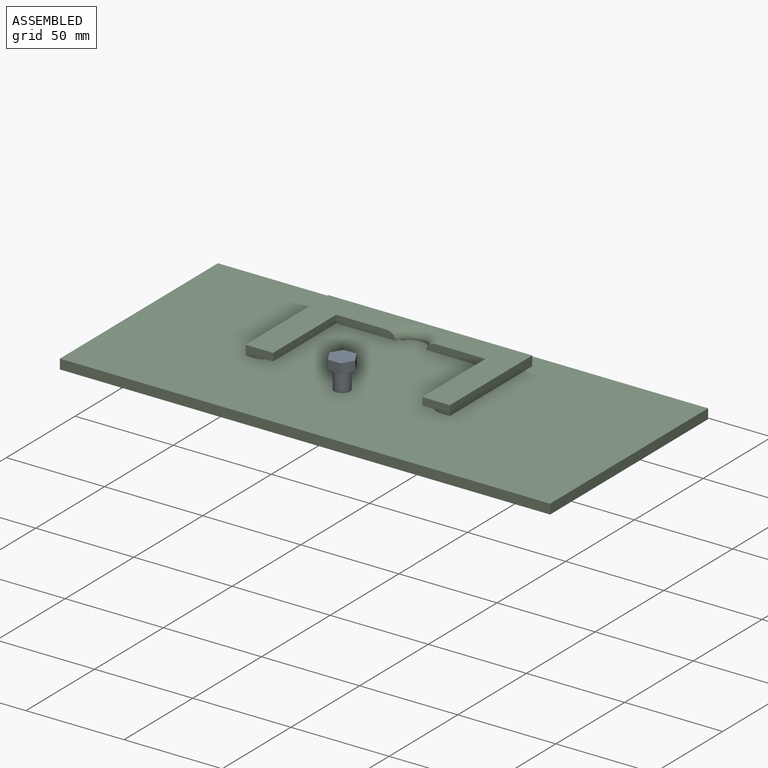
[diagram: assembled view]
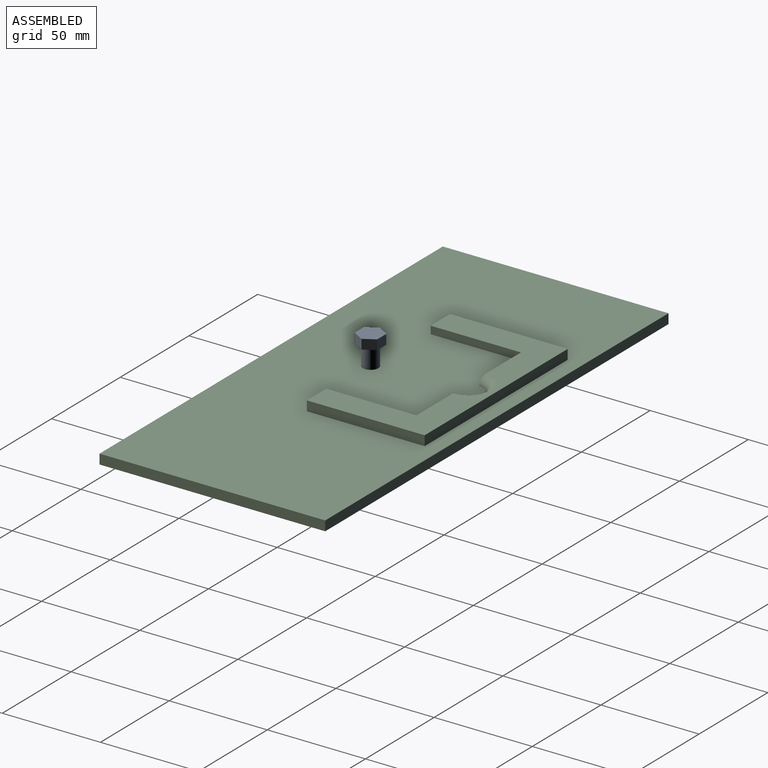
[diagram: assembled view, second angle]
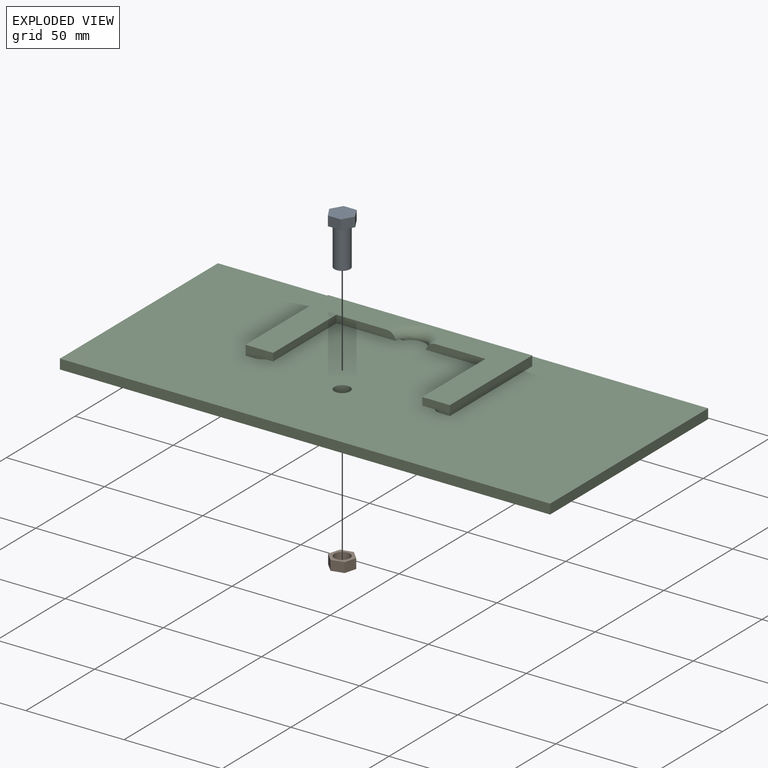
[diagram: exploded view]
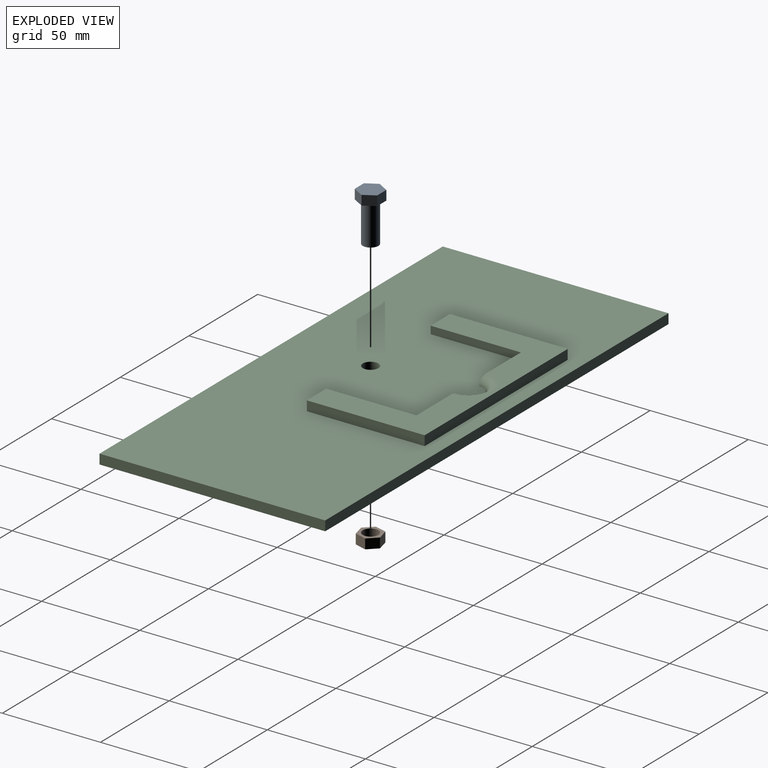
[diagram: exploded view, second angle]
ASSEMBLY  parts=3 mates=2
PART A: 22 faces, bbox 13.3x11.5x25 mm
  f0: cylinder r=4mm len=20mm, axis (0,0,-1), area 502.7mm2, adj f1,f9
  f1: plane 8x8mm, normal (0,0,-1), area 50.3mm2, adj f0
  f2: plane 5.74x4.8mm, normal (0.87,0.5,0), area 31.8mm2, adj f3,f7,f11,f17
  f3: plane 6.63x4.8mm, normal (0,1,0), area 31.8mm2, adj f2,f4,f10,f16
  f4: plane 5.74x4.8mm, normal (-0.87,0.5,0), area 31.8mm2, adj f3,f5,f12,f18
  f5: plane 5.74x4.8mm, normal (-0.87,-0.5,0), area 31.8mm2, adj f4,f6,f14,f20
  f6: plane 6.63x4.8mm, normal (0,-1,0), area 31.8mm2, adj f5,f7,f15,f21
  f7: plane 5.74x4.8mm, normal (0.87,-0.5,0), area 31.8mm2, adj f2,f6,f13,f19
  f8: plane 13.02x11.28mm, normal (0,0,1), area 110.2mm2, adj f16,f17,f18,f19,f20,f21
  f9: plane 13.02x11.28mm, normal (0,0,-1), area 59.9mm2, adj f0,f10,f11,f12,f13,f14,f15
  f10: cylinder r=0.1mm len=6.63mm, axis (-1,0,0), area 1mm2, adj f3,f9,f11,f12
  f11: cylinder r=0.1mm len=5.79mm, axis (-0.5,0.87,0), area 1mm2, adj f2,f9,f10,f13
  f12: cylinder r=0.1mm len=5.79mm, axis (-0.5,-0.87,0), area 1mm2, adj f4,f9,f10,f14
  f13: cylinder r=0.1mm len=5.79mm, axis (0.5,0.87,0), area 1mm2, adj f7,f9,f11,f15
  f14: cylinder r=0.1mm len=5.79mm, axis (0.5,-0.87,0), area 1mm2, adj f5,f9,f12,f15
  f15: cylinder r=0.1mm len=6.63mm, axis (1,0,0), area 1mm2, adj f6,f9,f13,f14
  f16: cylinder r=0.1mm len=6.63mm, axis (1,0,0), area 1mm2, adj f3,f8,f17,f18
  f17: cylinder r=0.1mm len=5.79mm, axis (0.5,-0.87,0), area 1mm2, adj f2,f8,f16,f19
  f18: cylinder r=0.1mm len=5.79mm, axis (0.5,0.87,0), area 1mm2, adj f4,f8,f16,f20
  f19: cylinder r=0.1mm len=5.79mm, axis (-0.5,-0.87,0), area 1mm2, adj f7,f8,f17,f21
  f20: cylinder r=0.1mm len=5.79mm, axis (-0.5,0.87,0), area 1mm2, adj f5,f8,f18,f21
  f21: cylinder r=0.1mm len=6.63mm, axis (-1,0,0), area 1mm2, adj f6,f8,f19,f20
PART B: 9 faces, bbox 12.2x12.1x5 mm
  f0: plane 6.03x5mm, normal (0.96,-0.27,0), area 31.4mm2, adj f1,f5,f7,f8
  f1: plane 5x4.51mm, normal (0.72,0.7,0), area 31.4mm2, adj f0,f2,f7,f8
  f2: plane 6.08x5mm, normal (-0.24,0.97,0), area 31.4mm2, adj f1,f3,f7,f8
  f3: plane 6.03x5mm, normal (-0.96,0.27,0), area 31.4mm2, adj f2,f4,f7,f8
  f4: plane 5x4.51mm, normal (-0.72,-0.7,0), area 31.4mm2, adj f3,f5,f7,f8
  f5: plane 6.08x5mm, normal (0.24,-0.97,0), area 31.4mm2, adj f0,f4,f7,f8
  f6: cylinder r=4mm len=8mm, axis (0,0,-1), area 125.7mm2, adj f7,f8
  f7: plane 12.17x12.06mm, normal (0,0,1), area 51.9mm2, adj f0,f1,f2,f3,f4,f5,f6
  f8: plane 12.17x12.06mm, normal (0,0,-1), area 51.9mm2, adj f0,f1,f2,f3,f4,f5,f6
PART C: 26 faces, bbox 249.8x10x115 mm
  f0: plane 35.69x1.1mm, normal (0,0,-1), area 39.2mm2, adj f8,f12,f23,f25
  f1: plane 30.41x3.9mm, normal (0,0,-1), area 113.7mm2, adj f19,f22,f23,f25
  f2: plane 50x40.54mm, normal (0,1,0), area 328.5mm2, adj f13,f14,f15,f16,f20,f21,f25
  f3: plane 249.8x5mm, normal (0,0,1), area 1249mm2, adj f4,f6,f7,f8
  f4: plane 115x5mm, normal (-1,0,0), area 575mm2, adj f3,f5,f7,f8
  f5: plane 249.8x5mm, normal (0,0,-1), area 1249mm2, adj f4,f6,f7,f8
  f6: plane 115x5mm, normal (1,0,0), area 575mm2, adj f3,f5,f7,f8
  f7: plane 249.8x115mm, normal (0,1,0), area 28676.7mm2, adj f3,f4,f5,f6,f24
  f8: plane 249.8x115mm, normal (0,-1,0), area 26678.2mm2, adj f0,f3,f4,f5,f6,f9,f10,f11
  f9: plane 60x5mm, normal (-1,0,0), area 300mm2, adj f8,f10,f18,f22
  f10: plane 14x5mm, normal (0,0,-1), area 60.1mm2, adj f8,f9,f11,f19,f22,f23
  f11: cylinder r=5mm len=5mm, axis (0,1,0), area 8.6mm2, adj f8,f10,f12,f23
  f12: plane 45x1.1mm, normal (1,0,0), area 49.5mm2, adj f0,f8,f11,f23
  f13: plane 35.69x1.1mm, normal (0,0,-1), area 39.2mm2, adj f2,f8,f14,f25
  f14: plane 45x1.1mm, normal (-1,0,0), area 49.5mm2, adj f2,f8,f13,f15
  f15: cylinder r=5mm len=5mm, axis (0,1,0), area 8.6mm2, adj f2,f8,f14,f16
  f16: plane 14x5mm, normal (0,0,-1), area 60.1mm2, adj f2,f8,f15,f17,f21,f22
  f17: plane 60x5mm, normal (1,0,0), area 300mm2, adj f8,f16,f18,f22
  f18: plane 104.06x5mm, normal (0,0,1), area 520.3mm2, adj f8,f9,f17,f22
  f19: plane 46x3.9mm, normal (1,0,0), area 179.4mm2, adj f1,f10,f22,f23
  f20: plane 30.41x3.9mm, normal (0,0,-1), area 113.7mm2, adj f2,f21,f22,f25
  f21: plane 46x3.9mm, normal (-1,0,0), area 179.4mm2, adj f2,f16,f20,f22
  f22: plane 104.06x60mm, normal (0,-1,0), area 2499.4mm2, adj f1,f9,f10,f16,f17,f18,f19,f20
  f23: plane 50x40.54mm, normal (0,1,0), area 328.5mm2, adj f0,f1,f10,f11,f12,f19,f25
  f24: cylinder r=4mm len=8mm, axis (0,-1,0), area 125.7mm2, adj f7,f8
  f25: torus R=12.5mm, axis (0,-1,0), area 220.5mm2, adj f0,f1,f2,f8,f13,f20,f22,f23
PLACE A t=(-18.25,-65.17,2.32)mm
PLACE B t=(-18.25,-65.17,2.32)mm
PLACE C rot(axis=(-1,0,0),90deg) t=(-8.96,-42.94,12.32)mm
MATE slider B.f6 <-> A.f0  axis (0,0,-1) through (-18.25,-65.17,2.32)mm
MATE fastened C.f24 <-> B.f6  axis (0,0,-1) through (-18.25,-65.17,7.32)mm
